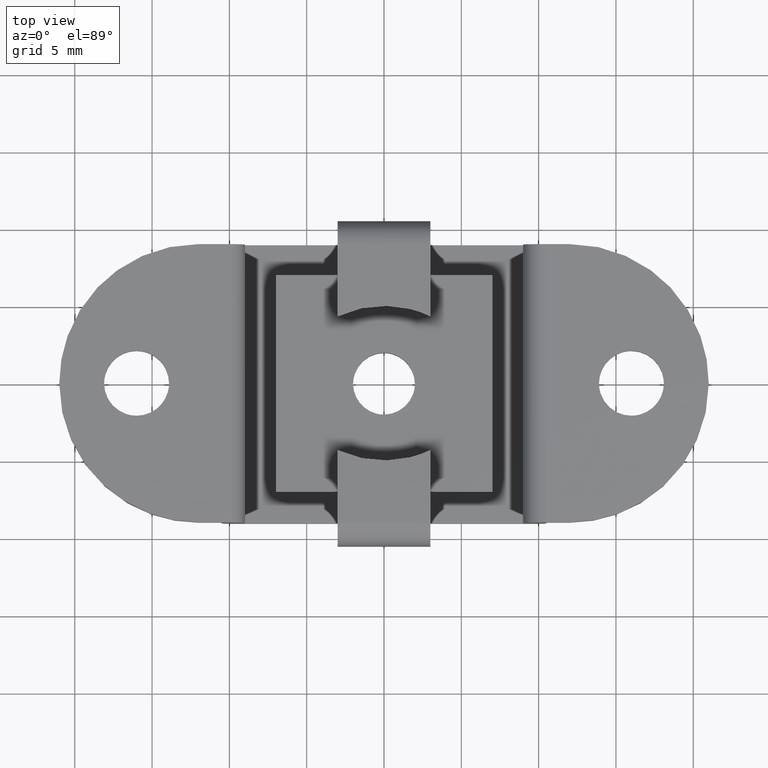
[diagram: clean part render]
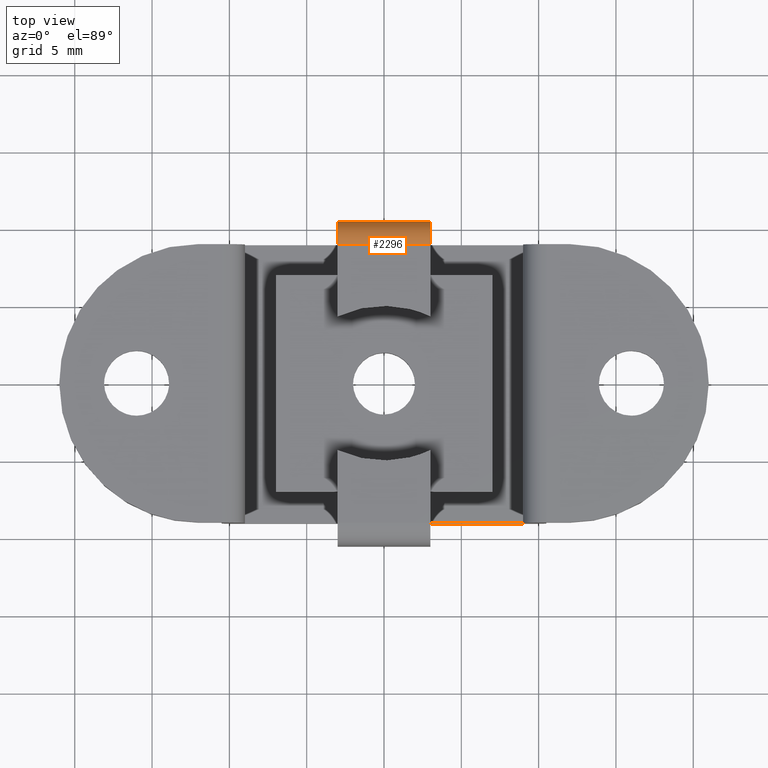
[diagram: same view with one face highlighted and labeled with its STEP entity id]
A machine part, top view. The second image highlights one B-rep face of the part: STEP entity #2296.
In plain terms, the highlighted face is a freeform B-spline surface patch.
Its self-contained STEP definition (entity closure, byte-faithful):
#1354=CARTESIAN_POINT('',(3.0,9.0,5.700000000000000));
#1355=VERTEX_POINT('',#1354);
#1361=CARTESIAN_POINT('',(-3.0,9.0,5.700000000000000));
#1362=VERTEX_POINT('',#1361);
#1363=CARTESIAN_POINT('',(3.0,9.0,5.700000000000000));
#1364=CARTESIAN_POINT('',(-3.0,9.0,5.700000000000000));
#1365=QUASI_UNIFORM_CURVE('',1,(#1363,#1364),.UNSPECIFIED.,.F.,.U.);
#1366=EDGE_CURVE('',#1355,#1362,#1365,.T.);
#2245=CARTESIAN_POINT('',(3.150000000000000,10.499485987463339,4.160734577538190));
#2246=CARTESIAN_POINT('',(-3.153750000000000,10.499485987463339,4.160734577538190));
#2247=CARTESIAN_POINT('',(3.150000000000000,10.542738390249397,5.812477200832078));
#2248=CARTESIAN_POINT('',(-3.153749999999999,10.542738390249395,5.812477200832078));
#2249=CARTESIAN_POINT('',(3.149999999999999,8.894519886561030,5.696286719071215));
#2250=CARTESIAN_POINT('',(-3.153750000000001,8.894519886561026,5.696286719071215));
#2258=(BOUNDED_SURFACE()B_SPLINE_SURFACE(1,2,((#2245,#2247,#2249),(#2246,#2248,#2250)),.UNSPECIFIED.,.F.,.F.,.U.)B_SPLINE_SURFACE_WITH_KNOTS((2,2),(3,3),(0.0,6.303750000000000),(0.0,2.656713516132545),.UNSPECIFIED.)GEOMETRIC_REPRESENTATION_ITEM()RATIONAL_B_SPLINE_SURFACE(((1.0,0.670944223154768,0.996392648609106),(1.0,0.670944223154768,0.996392648609106)))REPRESENTATION_ITEM('')SURFACE());
#2259=CARTESIAN_POINT('',(-3.0,10.500000000000000,4.200000000000000));
#2260=VERTEX_POINT('',#2259);
#2261=CARTESIAN_POINT('',(-3.0,9.0,5.700000000000000));
#2262=CARTESIAN_POINT('',(-2.999999999999991,9.184104940360657,5.700152888018846));
#2263=CARTESIAN_POINT('',(-3.000000000000012,9.453963543749016,5.649666276971002));
#2264=CARTESIAN_POINT('',(-2.999999999999973,9.797101773498135,5.482128348124002));
#2265=CARTESIAN_POINT('',(-3.000000000000092,10.042764881204590,5.295243593609738));
#2266=CARTESIAN_POINT('',(-2.999999999999929,10.261366529603320,5.035438172210668));
#2267=CARTESIAN_POINT('',(-3.000000000000037,10.446946161120330,4.672380143080646));
#2268=CARTESIAN_POINT('',(-2.999999999999994,10.500141319773659,4.377963215052269));
#2269=CARTESIAN_POINT('',(-3.0,10.500000000000000,4.200000000000000));
#2270=B_SPLINE_CURVE_WITH_KNOTS('',3,(#2261,#2262,#2263,#2264,#2265,#2266,#2267,#2268,#2269),.UNSPECIFIED.,.F.,.U.,(4,1,1,1,1,1,4),(0.000000052720490,0.552235908878129,0.809953102174936,1.141297109189043,1.472627968994573,1.822382049918041,2.356209274317296),.UNSPECIFIED.);
#2271=EDGE_CURVE('',#1362,#2260,#2270,.T.);
#2272=ORIENTED_EDGE('',*,*,#2271,.F.);
#2273=ORIENTED_EDGE('',*,*,#1366,.F.);
#2274=CARTESIAN_POINT('',(3.0,10.500000000000000,4.200000000000000));
#2275=VERTEX_POINT('',#2274);
#2276=CARTESIAN_POINT('',(3.0,10.500000000000000,4.200000000000000));
#2277=CARTESIAN_POINT('',(2.999999999999998,10.500018163720460,4.310446531244033));
#2278=CARTESIAN_POINT('',(3.000000000000004,10.478205330418300,4.506783118770975));
#2279=CARTESIAN_POINT('',(2.999999999999996,10.372252664535980,4.841467557760128));
#2280=CARTESIAN_POINT('',(3.000000000000008,10.182022397515890,5.154479973700603));
#2281=CARTESIAN_POINT('',(3.000000000000006,9.905675094159516,5.411107172316409));
#2282=CARTESIAN_POINT('',(2.999999999999973,9.612696962591985,5.581869455490923));
#2283=CARTESIAN_POINT('',(3.000000000000081,9.312932205082516,5.678856514954954));
#2284=CARTESIAN_POINT('',(2.999999999999894,9.098173663363969,5.700008684551209));
#2285=CARTESIAN_POINT('',(3.0,9.0,5.700000000000000));
#2286=B_SPLINE_CURVE_WITH_KNOTS('',3,(#2276,#2277,#2278,#2279,#2280,#2281,#2282,#2283,#2284,#2285),.UNSPECIFIED.,.F.,.U.,(4,1,1,1,1,1,1,4),(0.000000052721116,0.331338341887698,0.589052363013755,1.049250564076293,1.417397069882497,1.711931886899415,2.061685967823574,2.356209274317278),.UNSPECIFIED.);
#2287=EDGE_CURVE('',#2275,#1355,#2286,.T.);
#2288=ORIENTED_EDGE('',*,*,#2287,.F.);
#2289=CARTESIAN_POINT('',(-3.0,10.500000000000000,4.200000000000000));
#2290=CARTESIAN_POINT('',(3.0,10.500000000000000,4.200000000000000));
#2291=QUASI_UNIFORM_CURVE('',1,(#2289,#2290),.UNSPECIFIED.,.F.,.U.);
#2292=EDGE_CURVE('',#2260,#2275,#2291,.T.);
#2293=ORIENTED_EDGE('',*,*,#2292,.F.);
#2294=EDGE_LOOP('',(#2272,#2273,#2288,#2293));
#2295=FACE_OUTER_BOUND('',#2294,.T.);
#2296=ADVANCED_FACE('',(#2295),#2258,.T.);